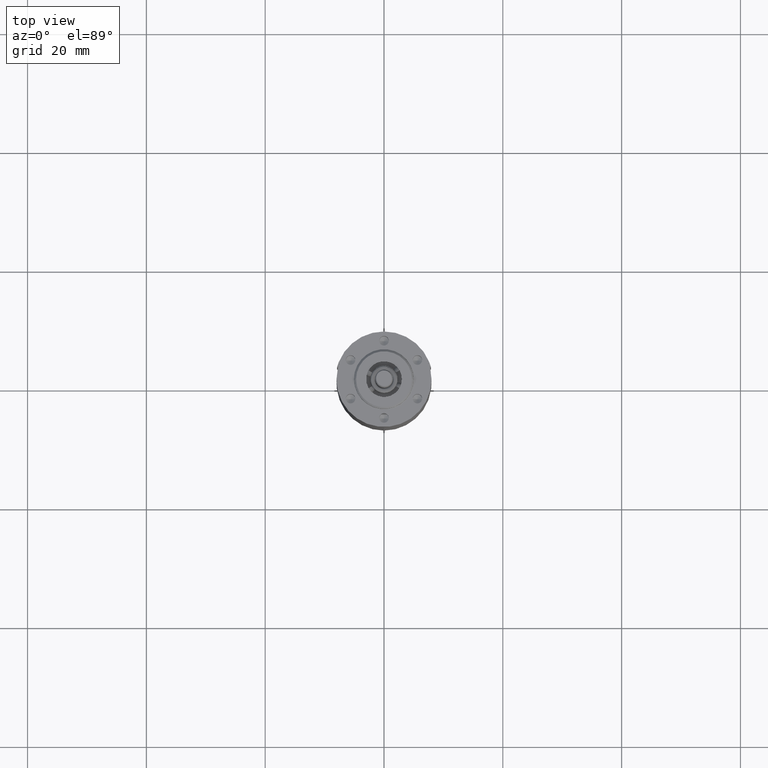
[diagram: clean part render]
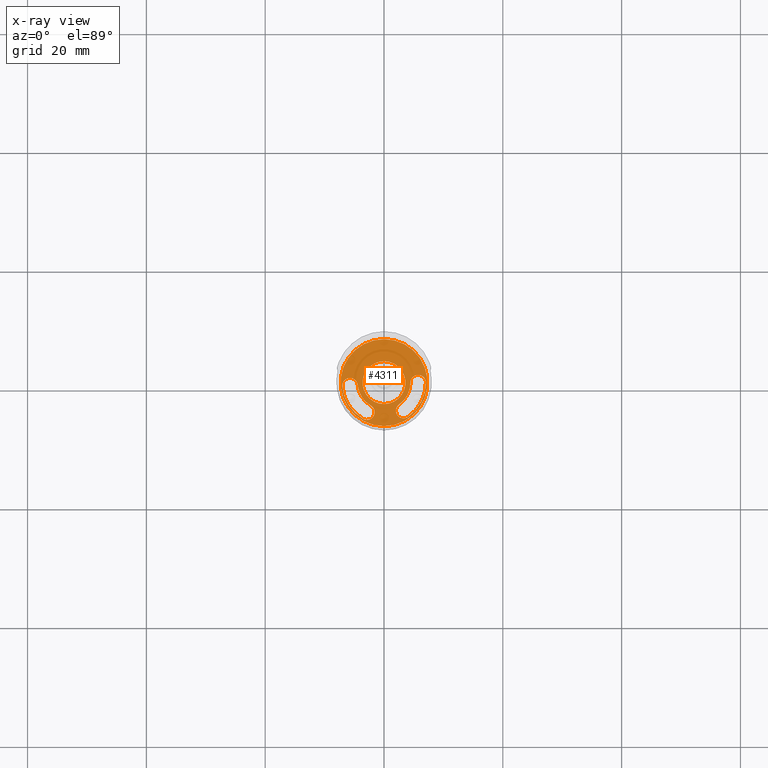
[diagram: x-ray — body ghosted, one internal face saturated and labeled with its STEP entity id]
A machine part, top view, then the same camera in x-ray: the body is ghosted and one INTERNAL B-rep face — a face not visible from any outside direction — is saturated and labeled: STEP entity #4311.
In plain terms, the highlighted planar face has unit normal (0, 0, 1).
Its self-contained STEP definition (entity closure, byte-faithful):
#595=CARTESIAN_POINT('',(0.E0,0.E0,2.5E0));
#596=DIRECTION('',(0.E0,0.E0,-1.E0));
#597=DIRECTION('',(0.E0,-1.E0,0.E0));
#598=AXIS2_PLACEMENT_3D('',#595,#596,#597);
#600=CARTESIAN_POINT('',(0.E0,0.E0,2.5E0));
#601=DIRECTION('',(0.E0,0.E0,-1.E0));
#602=DIRECTION('',(0.E0,1.E0,0.E0));
#603=AXIS2_PLACEMENT_3D('',#600,#601,#602);
#605=CARTESIAN_POINT('',(0.E0,0.E0,2.500000000031E0));
#606=DIRECTION('',(0.E0,0.E0,1.E0));
#607=DIRECTION('',(0.E0,1.E0,0.E0));
#608=AXIS2_PLACEMENT_3D('',#605,#606,#607);
#610=CARTESIAN_POINT('',(0.E0,0.E0,2.500000000031E0));
#611=DIRECTION('',(0.E0,0.E0,1.E0));
#612=DIRECTION('',(0.E0,-1.E0,0.E0));
#613=AXIS2_PLACEMENT_3D('',#610,#611,#612);
#615=CARTESIAN_POINT('',(-2.875E0,-4.979646071761E0,2.499999999974E0));
#616=DIRECTION('',(0.E0,0.E0,1.E0));
#617=DIRECTION('',(1.373260479689E-13,-1.E0,0.E0));
#618=AXIS2_PLACEMENT_3D('',#615,#616,#617);
#620=CARTESIAN_POINT('',(0.E0,0.E0,2.499999999897E0));
#621=DIRECTION('',(0.E0,0.E0,-1.E0));
#622=DIRECTION('',(-4.999999991085E-1,-8.660254042991E-1,0.E0));
#623=AXIS2_PLACEMENT_3D('',#620,#621,#622);
#625=CARTESIAN_POINT('',(-5.728119514028E0,-5.011455207990E-1,
2.500000000031E0));
#626=DIRECTION('',(0.E0,0.E0,1.E0));
#627=DIRECTION('',(9.961946977795E-1,8.715574631685E-2,0.E0));
#628=AXIS2_PLACEMENT_3D('',#625,#626,#627);
#630=CARTESIAN_POINT('',(-5.728119514028E0,-5.011455207990E-1,
2.500000000031E0));
#631=DIRECTION('',(0.E0,0.E0,1.E0));
#632=DIRECTION('',(0.E0,1.E0,0.E0));
#633=AXIS2_PLACEMENT_3D('',#630,#631,#632);
#635=CARTESIAN_POINT('',(0.E0,0.E0,2.5E0));
#636=DIRECTION('',(0.E0,0.E0,1.E0));
#637=DIRECTION('',(-9.961946980938E-1,-8.715574272454E-2,0.E0));
#638=AXIS2_PLACEMENT_3D('',#635,#636,#637);
#640=CARTESIAN_POINT('',(-2.875E0,-4.979646071761E0,2.499999999974E0));
#641=DIRECTION('',(0.E0,0.E0,1.E0));
#642=DIRECTION('',(-4.999999999965E-1,-8.660254037865E-1,0.E0));
#643=AXIS2_PLACEMENT_3D('',#640,#641,#642);
#645=CARTESIAN_POINT('',(5.75E0,3.755849797837E-14,2.499999999974E0));
#646=DIRECTION('',(0.E0,0.E0,1.E0));
#647=DIRECTION('',(1.E0,-1.937289898543E-10,0.E0));
#648=AXIS2_PLACEMENT_3D('',#645,#646,#647);
#650=CARTESIAN_POINT('',(5.75E0,3.755849797838E-14,2.499999999917E0));
#651=DIRECTION('',(0.E0,0.E0,1.E0));
#652=DIRECTION('',(0.E0,1.E0,0.E0));
#653=AXIS2_PLACEMENT_3D('',#650,#651,#652);
#655=CARTESIAN_POINT('',(0.E0,0.E0,2.499999999974E0));
#656=DIRECTION('',(0.E0,0.E0,-1.E0));
#657=DIRECTION('',(1.E0,-9.605114706008E-10,0.E0));
#658=AXIS2_PLACEMENT_3D('',#655,#656,#657);
#660=CARTESIAN_POINT('',(3.298064509019E0,-4.710124254662E0,2.499999999974E0));
#661=DIRECTION('',(0.E0,0.E0,1.E0));
#662=DIRECTION('',(-5.735764362416E-1,8.191520443657E-1,0.E0));
#663=AXIS2_PLACEMENT_3D('',#660,#661,#662);
#665=CARTESIAN_POINT('',(3.298064509019E0,-4.710124254662E0,2.499999999974E0));
#666=DIRECTION('',(0.E0,0.E0,1.E0));
#667=DIRECTION('',(0.E0,-1.E0,0.E0));
#668=AXIS2_PLACEMENT_3D('',#665,#666,#667);
#670=CARTESIAN_POINT('',(0.E0,0.E0,2.5E0));
#671=DIRECTION('',(0.E0,0.E0,1.E0));
#672=DIRECTION('',(5.735764363281E-1,-8.191520443051E-1,0.E0));
#673=AXIS2_PLACEMENT_3D('',#670,#671,#672);
#2958=CARTESIAN_POINT('',(7.049999999967E0,-1.821218849405E-10,
2.499999999986E0));
#2959=VERTEX_POINT('',#2958);
#2960=CARTESIAN_POINT('',(5.75E0,1.299999999972E0,2.499999999978E0));
#2961=VERTEX_POINT('',#2960);
#2962=CARTESIAN_POINT('',(4.449999999951E0,-1.920362107235E-9,
2.500000000029E0));
#2963=VERTEX_POINT('',#2962);
#2968=CARTESIAN_POINT('',(2.552415143435E0,-3.645226595869E0,2.499999999985E0));
#2969=VERTEX_POINT('',#2968);
#2974=CARTESIAN_POINT('',(4.043713878046E0,-5.775021911025E0,2.499999999991E0));
#2975=VERTEX_POINT('',#2974);
#2976=CARTESIAN_POINT('',(0.E0,-7.318014882867E0,2.5E0));
#2977=CARTESIAN_POINT('',(0.E0,7.318014882867E0,2.5E0));
#2978=VERTEX_POINT('',#2976);
#2979=VERTEX_POINT('',#2977);
#2980=CARTESIAN_POINT('',(0.E0,3.609191070297E0,2.500000000031E0));
#2981=CARTESIAN_POINT('',(0.E0,-3.609191070297E0,2.500000000031E0));
#2982=VERTEX_POINT('',#2980);
#2983=VERTEX_POINT('',#2981);
#2984=CARTESIAN_POINT('',(-2.875E0,-6.279646071762E0,2.499999999974E0));
#2985=CARTESIAN_POINT('',(-2.224999996033E0,-3.853813049131E0,
2.499999999974E0));
#2986=VERTEX_POINT('',#2984);
#2987=VERTEX_POINT('',#2985);
#2988=CARTESIAN_POINT('',(-4.433066407011E0,-3.878430505955E-1,
2.499999999897E0));
#2989=VERTEX_POINT('',#2988);
#2990=CARTESIAN_POINT('',(-5.728119514028E0,7.988544792284E-1,
2.500000000031E0));
#2991=VERTEX_POINT('',#2990);
#2992=CARTESIAN_POINT('',(-7.023172621589E0,-6.144479862105E-1,
2.500000000031E0));
#2993=VERTEX_POINT('',#2992);
#2994=CARTESIAN_POINT('',(-3.524999999995E0,-6.105479096683E0,2.5E0));
#2995=VERTEX_POINT('',#2994);
#2996=CARTESIAN_POINT('',(3.298064509019E0,-6.010124254695E0,2.499999999974E0));
#2997=VERTEX_POINT('',#2996);
#4268=CARTESIAN_POINT('',(0.E0,0.E0,2.5E0));
#4269=DIRECTION('',(0.E0,0.E0,1.E0));
#4270=DIRECTION('',(0.E0,-1.E0,0.E0));
#4271=AXIS2_PLACEMENT_3D('',#4268,#4269,#4270);
#4272=PLANE('',#4271);
#4274=ORIENTED_EDGE('',*,*,#4273,.T.);
#4276=ORIENTED_EDGE('',*,*,#4275,.T.);
#4277=EDGE_LOOP('',(#4274,#4276));
#4278=FACE_OUTER_BOUND('',#4277,.F.);
#4279=ORIENTED_EDGE('',*,*,#4235,.T.);
#4280=ORIENTED_EDGE('',*,*,#4250,.T.);
#4281=EDGE_LOOP('',(#4279,#4280));
#4282=FACE_BOUND('',#4281,.F.);
#4284=ORIENTED_EDGE('',*,*,#4283,.T.);
#4286=ORIENTED_EDGE('',*,*,#4285,.T.);
#4288=ORIENTED_EDGE('',*,*,#4287,.T.);
#4290=ORIENTED_EDGE('',*,*,#4289,.T.);
#4292=ORIENTED_EDGE('',*,*,#4291,.T.);
#4294=ORIENTED_EDGE('',*,*,#4293,.T.);
#4295=EDGE_LOOP('',(#4284,#4286,#4288,#4290,#4292,#4294));
#4296=FACE_BOUND('',#4295,.F.);
#4298=ORIENTED_EDGE('',*,*,#4297,.T.);
#4300=ORIENTED_EDGE('',*,*,#4299,.T.);
#4302=ORIENTED_EDGE('',*,*,#4301,.T.);
#4304=ORIENTED_EDGE('',*,*,#4303,.T.);
#4306=ORIENTED_EDGE('',*,*,#4305,.T.);
#4308=ORIENTED_EDGE('',*,*,#4307,.T.);
#4309=EDGE_LOOP('',(#4298,#4300,#4302,#4304,#4306,#4308));
#4310=FACE_BOUND('',#4309,.F.);
#4311=ADVANCED_FACE('',(#4278,#4282,#4296,#4310),#4272,.T.);
#599=CIRCLE('',#598,7.318014882867E0);
#604=CIRCLE('',#603,7.318014882867E0);
#609=CIRCLE('',#608,3.609191070297E0);
#614=CIRCLE('',#613,3.609191070297E0);
#619=CIRCLE('',#618,1.300000000001E0);
#624=CIRCLE('',#623,4.450000000097E0);
#629=CIRCLE('',#628,1.300000000027E0);
#634=CIRCLE('',#633,1.300000000027E0);
#639=CIRCLE('',#638,7.05E0);
#644=CIRCLE('',#643,1.300000000001E0);
#649=CIRCLE('',#648,1.299999999958E0);
#654=CIRCLE('',#653,1.299999999958E0);
#659=CIRCLE('',#658,4.449999999963E0);
#664=CIRCLE('',#663,1.300000000033E0);
#669=CIRCLE('',#668,1.300000000033E0);
#674=CIRCLE('',#673,7.05E0);
#4235=EDGE_CURVE('',#2982,#2983,#609,.T.);
#4250=EDGE_CURVE('',#2983,#2982,#614,.T.);
#4273=EDGE_CURVE('',#2978,#2979,#599,.T.);
#4275=EDGE_CURVE('',#2979,#2978,#604,.T.);
#4283=EDGE_CURVE('',#2986,#2987,#619,.T.);
#4285=EDGE_CURVE('',#2987,#2989,#624,.T.);
#4287=EDGE_CURVE('',#2989,#2991,#629,.T.);
#4289=EDGE_CURVE('',#2991,#2993,#634,.T.);
#4291=EDGE_CURVE('',#2993,#2995,#639,.T.);
#4293=EDGE_CURVE('',#2995,#2986,#644,.T.);
#4297=EDGE_CURVE('',#2959,#2961,#649,.T.);
#4299=EDGE_CURVE('',#2961,#2963,#654,.T.);
#4301=EDGE_CURVE('',#2963,#2969,#659,.T.);
#4303=EDGE_CURVE('',#2969,#2997,#664,.T.);
#4305=EDGE_CURVE('',#2997,#2975,#669,.T.);
#4307=EDGE_CURVE('',#2975,#2959,#674,.T.);